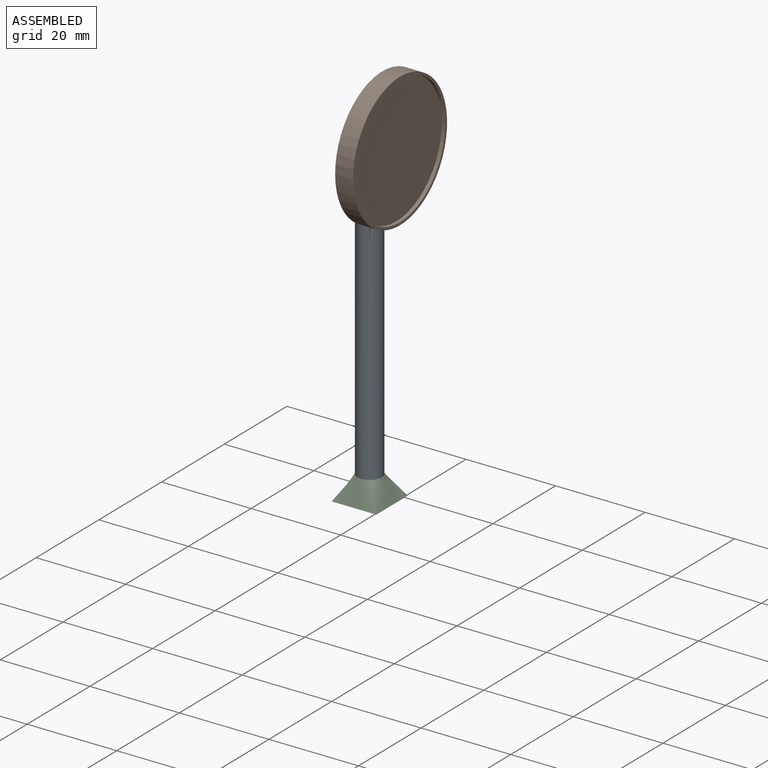
[diagram: assembled view]
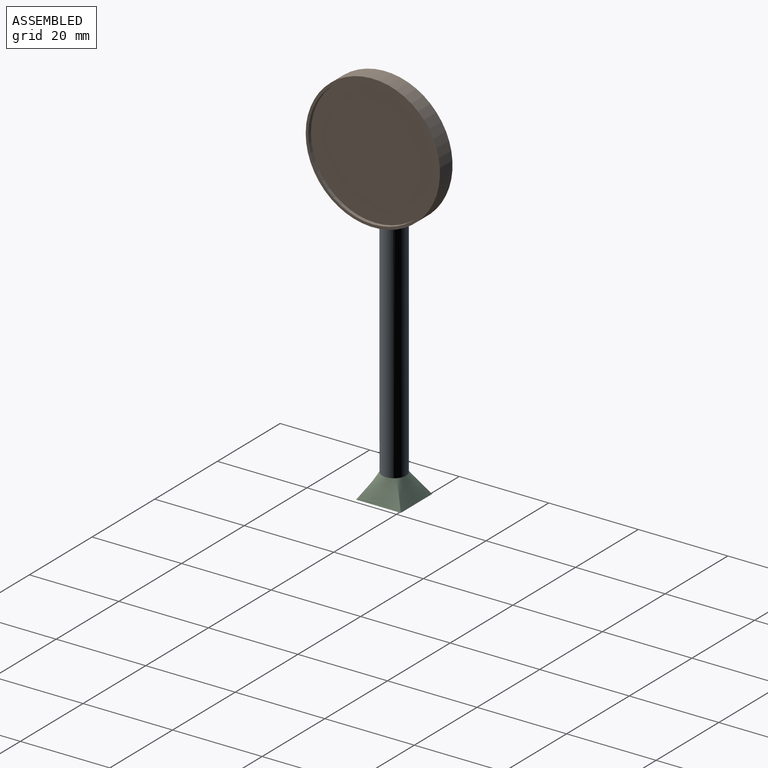
[diagram: assembled view, second angle]
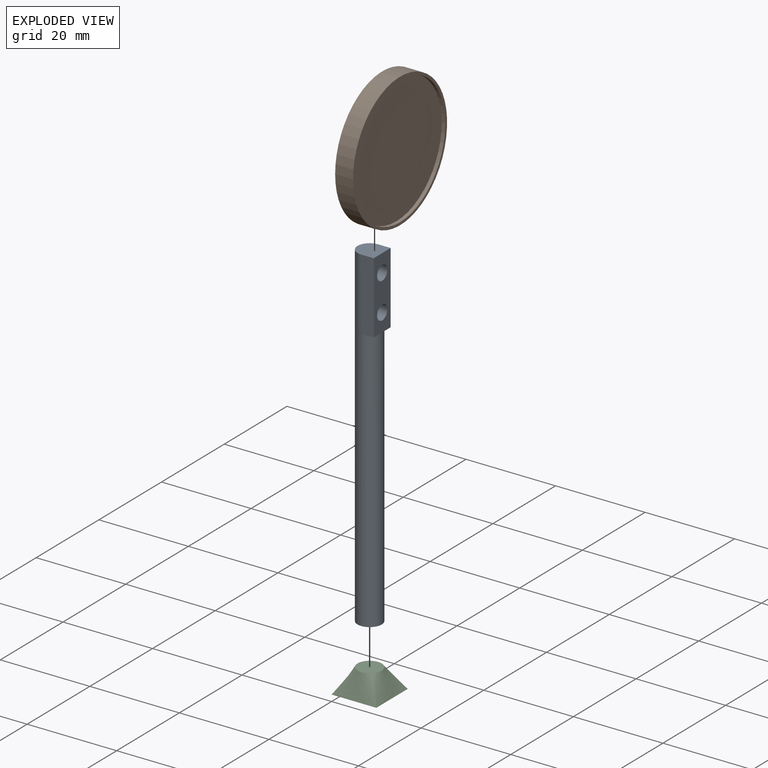
[diagram: exploded view]
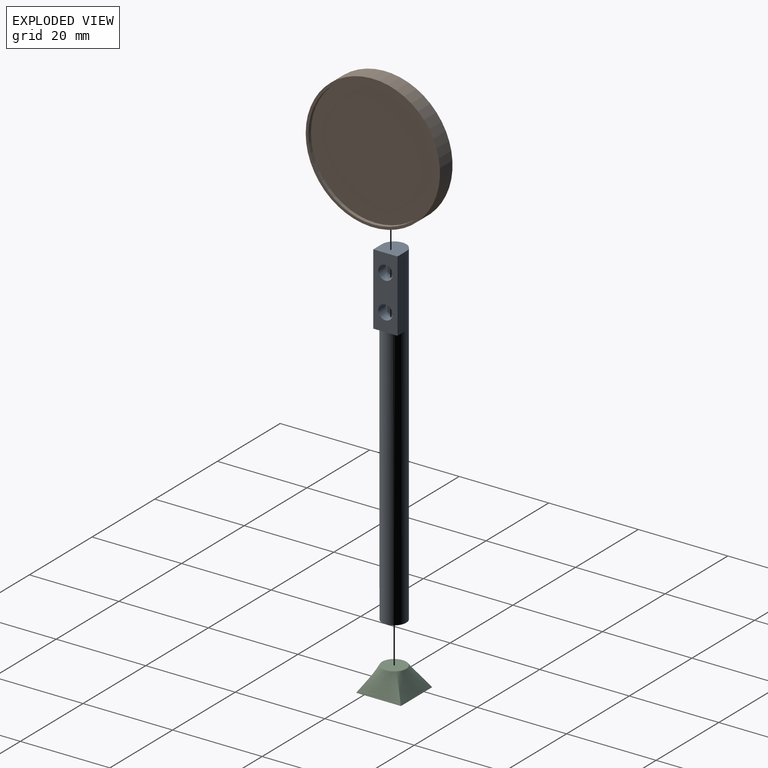
[diagram: exploded view, second angle]
ASSEMBLY  parts=3 mates=2
PART A: 11 faces, bbox 5.5x5.4x75 mm
  f0: cylinder r=2.7mm len=75mm, axis (0,0,-1), area 1136.6mm2, adj f1,f2,f3,f4,f5
  f1: plane 5.5x5.4mm, normal (0,0,1), area 26.6mm2, adj f0,f3,f4,f6
  f2: plane 5.4x5.4mm, normal (0,0,-1), area 22.9mm2, adj f0
  f3: plane 16x2.8mm, normal (0,-1,0), area 44.8mm2, adj f0,f1,f5,f6
  f4: plane 16x2.8mm, normal (0,1,0), area 44.8mm2, adj f0,f1,f5,f6
  f5: plane 5.4x2.8mm, normal (0,0,-1), area 3.7mm2, adj f0,f3,f4,f6
  f6: plane 16x5.4mm, normal (1,0,0), area 70.3mm2, adj f1,f3,f4,f5,f7,f9
  f7: cylinder r=1.6mm len=3.2mm, axis (1,0,0), area 24.1mm2, adj f6,f8
  f8: plane 3.2x3.2mm, normal (1,0,0), area 8mm2, adj f7
  f9: cylinder r=1.6mm len=3.2mm, axis (1,0,0), area 24.1mm2, adj f6,f10
  f10: plane 3.2x3.2mm, normal (1,0,0), area 8mm2, adj f9
PART B: 9 faces, bbox 30x30x4 mm
  f0: cylinder r=15mm len=30mm, axis (0,0,-1), area 377mm2, adj f1,f2
  f1: plane 30x30mm, normal (0,0,1), area 55.4mm2, adj f0,f3
  f2: plane 30x30mm, normal (0,0,-1), area 690.8mm2, adj f0,f5,f7
  f3: cylinder r=14.4mm len=28.8mm, axis (0,0,1), area 72.4mm2, adj f1,f4
  f4: plane 28.8x28.8mm, normal (0,0,1), area 651.4mm2, adj f3
  f5: cylinder r=1.6mm len=3.2mm, axis (0,0,-1), area 24.1mm2, adj f2,f6
  f6: plane 3.2x3.2mm, normal (0,0,-1), area 8mm2, adj f5
  f7: cylinder r=1.6mm len=3.2mm, axis (0,0,-1), area 24.1mm2, adj f2,f8
  f8: plane 3.2x3.2mm, normal (0,0,-1), area 8mm2, adj f7
PART C: 8 faces, bbox 10x10x5 mm
  f0: plane 10x10mm, normal (0,0,-1), area 86.1mm2, adj f2,f3,f4,f5,f6
  f1: plane 5.4x5.4mm, normal (0,0,1), area 22.9mm2, adj f2,f3,f4,f5
  f2: bspline ~10x5mm, area 40.1mm2, adj f0,f1,f3,f5
  f3: bspline ~10x5mm, area 40.1mm2, adj f0,f1,f2,f4
  f4: bspline ~10x5mm, area 40.1mm2, adj f0,f1,f3,f5
  f5: bspline ~10x5mm, area 40.1mm2, adj f0,f1,f2,f4
  f6: cylinder r=2.1mm len=4.2mm, axis (0,0,-1), area 31.7mm2, adj f0,f7
  f7: plane 4.2x4.2mm, normal (0,0,-1), area 13.9mm2, adj f6
PLACE A t=(5,5,5)mm
PLACE B rot(axis=(-0.58,0.58,-0.58),120deg) t=(7.8,5,72)mm
PLACE C t=(5,5,5)mm
MATE fastened C.f6 <-> A.f0  axis (0,0,1) through (5,5,5)mm
MATE fastened B.f0 <-> A.f6  axis (-1,0,0) through (7.8,5,72)mm
